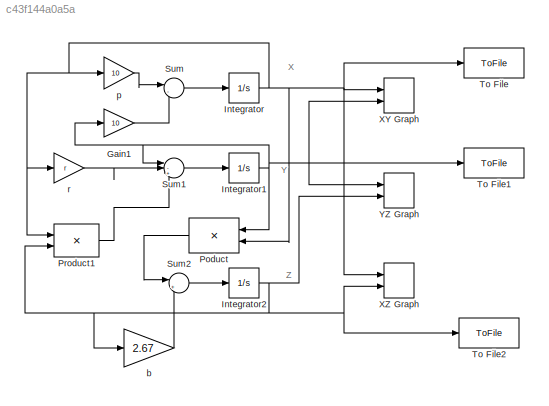
MODEL slx_c43f144a0a5a
KIND model
CONFIG AbsTol = auto
CONFIG EnableMultiTasking = on
CONFIG FixedStep = auto
CONFIG MaxStep = auto
CONFIG MinStep = auto
CONFIG RelTol = 1e-3
CONFIG SampleTimeConstraint = Unconstrained
CONFIG SolverName = ode45
CONFIG StartTime = 0.0
CONFIG StopTime = 100
BLOCK [Gain] Gain1
  Gain = 10
  OutDataTypeStr = Inherit: Same as input
  ParamDataTypeStr = Inherit: Same as input
  SaturateOnIntegerOverflow = on
BLOCK [Integrator] Integrator
  InitialCondition = 0.6
  Ports = [1, 1]
BLOCK [Integrator] Integrator1
  InitialCondition = -10
  Ports = [1, 1]
BLOCK [Integrator] Integrator2
  InitialCondition = 30
  Ports = [1, 1]
BLOCK [Product] Poduct
  NameLocation = top
  OutDataTypeStr = Inherit: Same as first input
  Ports = [2, 1]
  SaturateOnIntegerOverflow = on
BLOCK [Product] Product1
  OutDataTypeStr = Inherit: Same as first input
  Ports = [2, 1]
  SaturateOnIntegerOverflow = on
BLOCK [Sum] Sum
  Inputs = |-+
  Ports = [2, 1]
  SaturateOnIntegerOverflow = on
BLOCK [Sum] Sum1
  Inputs = |-+-
  Ports = [3, 1]
  SaturateOnIntegerOverflow = on
BLOCK [Sum] Sum2
  Inputs = |+-
  Ports = [2, 1]
  SaturateOnIntegerOverflow = on
BLOCK [ToFile] To File
  Filename = X.mat
  MatrixName = X
  Ports = [1]
  SampleTime = 0.001
BLOCK [ToFile] To File1
  Filename = Y.mat
  MatrixName = Y
  Ports = [1]
  SampleTime = 0.001
BLOCK [ToFile] To File2
  Filename = Z.mat
  MatrixName = Z
  Ports = [1]
  SampleTime = 0.001
BLOCK [Record] XY Graph
  AttributesFormatString = XY Graph=%<Name>
  CompatibilityTag = XY
  FileSettingsInternal = {"entries":[{"content":{"excelSettings":{"content":{},"type":"Streamout.ExcelSettings"}},"type":"Streamout.FileSettingStorage","uuid":"7c209d20-3f2c-4cda-9f27-f443970fdfbd"}],"packageUris":["http://schema.mathworks.com/mf0/streamout_blocks/R2020a"],"version":"1.0"}
  Layout = [1 1]
  Ports = [2]
  SignalsInternal = {"entries":[{"content":{"signals":[{"content":{"blockPath":["fig2_21_simulink/XY Graph"],"channel":[],"dimensions":[1],"domain":"fig2_21_simulink/XY Graph","lineColor":"#a2142f","plots":[1],"port":1,"sid":[""],"signalID":3700,"signalName":"Integrator"},"type":"RecordBlkView.Signal","uuid":"48b04296-ba91-45b8-aaa5-ebea06843d4c"},{"content":{"blockPath":["fig2_21_simulink/XY Graph"],"channel":[],"di...<+402ch>
  VisualizationBindings = {"xyplotplugin":{"info":[{"series":[{"bindingParametersList":[{"parameter":"X-Axis","signalID":3700,"signalName":"Integrator"},{"parameter":"Y-Axis","signalID":3704,"signalName":"Integrator1"}],"seriesID":42464}],"subplotID":1}]}}
  st = 0.02
BLOCK [Record] XZ Graph
  CompatibilityTag = XY
  FileSettingsInternal = {"entries":[{"content":{"excelSettings":{"content":{},"type":"Streamout.ExcelSettings"}},"type":"Streamout.FileSettingStorage","uuid":"ca91021e-d493-4428-a1f3-1e44a7a500ba"}],"packageUris":["http://schema.mathworks.com/mf0/streamout_blocks/R2020a"],"version":"1.0"}
  Layout = [1 1]
  Ports = [2]
  SignalsInternal = {"entries":[{"content":{"signals":[{"content":{"blockPath":["fig2_21_simulink/XZ Graph"],"channel":[],"dimensions":[1],"domain":"fig2_21_simulink/XZ Graph","lineColor":"#77ac30","plots":[],"port":1,"sid":[""],"signalID":3708,"signalName":"Integrator"},"type":"RecordBlkView.Signal","uuid":"d938d2da-4cd6-4133-8153-b59006252a33"},{"content":{"blockPath":["fig2_21_simulink/XZ Graph"],"channel":[],"dim...<+400ch>
  VisualizationBindings = {"xyplotplugin":{"info":[{"series":[],"subplotID":1}]}}
  st = 0.02
BLOCK [Record] YZ Graph
  CompatibilityTag = XY
  FileSettingsInternal = {"entries":[{"content":{"excelSettings":{"content":{},"type":"Streamout.ExcelSettings"}},"type":"Streamout.FileSettingStorage","uuid":"1397175e-e139-404e-9e5d-4c49f85c9d54"}],"packageUris":["http://schema.mathworks.com/mf0/streamout_blocks/R2020a"],"version":"1.0"}
  Layout = [1 1]
  Ports = [2]
  SignalsInternal = {"entries":[{"content":{"signals":[{"content":{"blockPath":["fig2_21_simulink/YZ Graph"],"channel":[],"dimensions":[1],"domain":"fig2_21_simulink/YZ Graph","lineColor":"#a2142f","plots":[],"port":1,"sid":[""],"signalID":3716,"signalName":"Integrator1"},"type":"RecordBlkView.Signal","uuid":"9d555d33-22ba-464a-b13f-03cacc9bfa88"},{"content":{"blockPath":["fig2_21_simulink/YZ Graph"],"channel":[],"di...<+401ch>
  VisualizationBindings = {"xyplotplugin":{"info":[{"series":[],"subplotID":1}]}}
  st = 0.02
BLOCK [Gain] b
  Gain = 2.67
  OutDataTypeStr = Inherit: Same as input
  ParamDataTypeStr = Inherit: Same as input
  SaturateOnIntegerOverflow = on
BLOCK [Gain] p
  Gain = 10
  OutDataTypeStr = Inherit: Same as input
  ParamDataTypeStr = Inherit: Same as input
  SaturateOnIntegerOverflow = on
BLOCK [Gain] r
  Gain = r
  OutDataTypeStr = Inherit: Same as input
  ParamDataTypeStr = Inherit: Same as input
  SaturateOnIntegerOverflow = on
ANNOTATION (root): X
ANNOTATION (root): Y
ANNOTATION (root): Z
LINE Gain1:1 -> Sum:2
NET Integrator1:1 -> Gain1:1, Poduct:1, Sum1:1, To File1:1, XY Graph:2, YZ Graph:1
NET Integrator2:1 -> Product1:2, To File2:1, XZ Graph:2, YZ Graph:2, b:1
NET Integrator:1 -> Poduct:2, Product1:1, To File:1, XY Graph:1, XZ Graph:1, p:1, r:1
LINE Poduct:1 -> Sum2:1
LINE Product1:1 -> Sum1:3
LINE Sum1:1 -> Integrator1:1
LINE Sum2:1 -> Integrator2:1
LINE Sum:1 -> Integrator:1
LINE b:1 -> Sum2:2
LINE p:1 -> Sum:1
LINE r:1 -> Sum1:2
note: NET lines group one-source signal fan-out (src -> all destinations, sorted); 1:1 wires keep LINE
